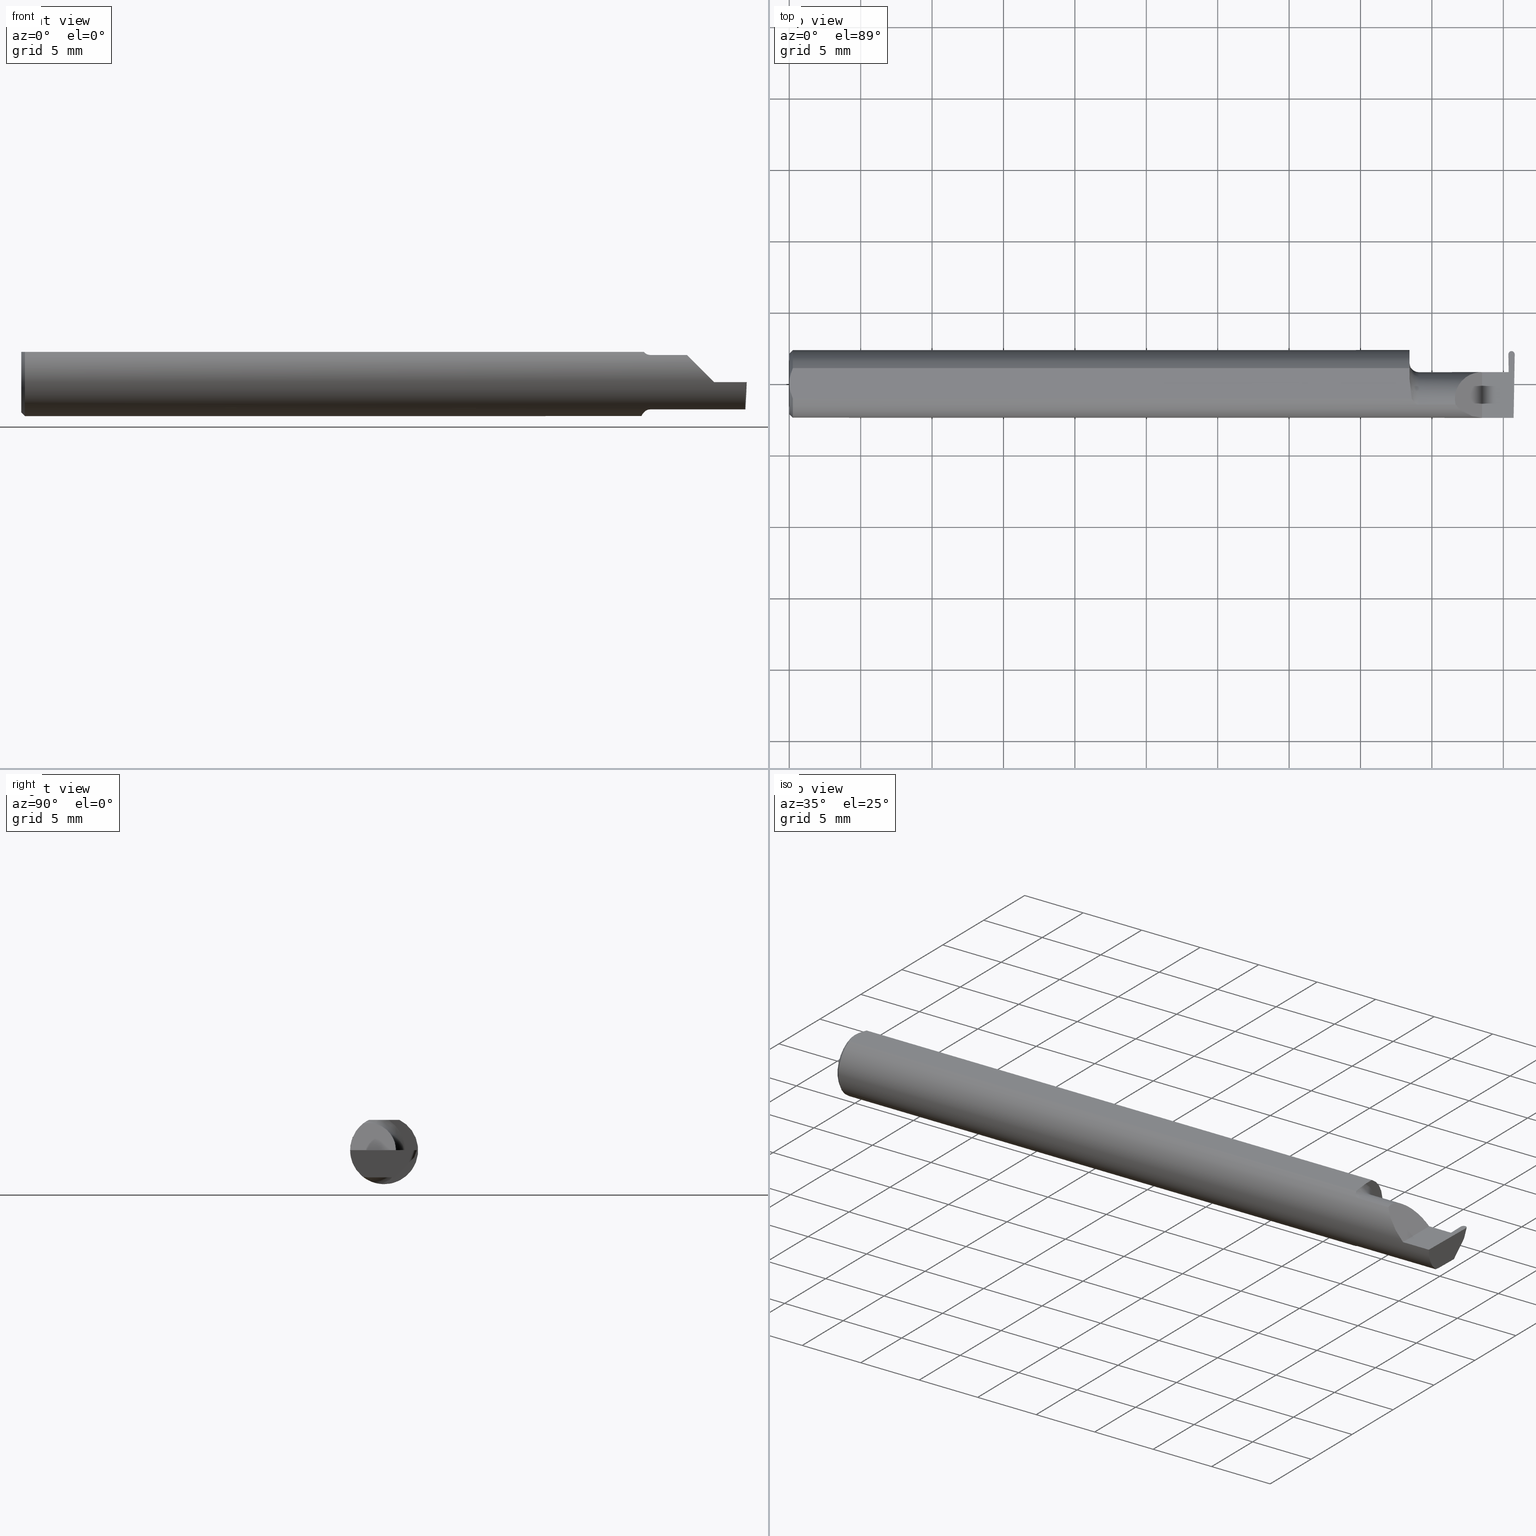
[diagram: canonical four-view strip — front | top / right | iso, engineering-drawing reading convention]
A machine part, canonical four-view strip (front | top / right | iso — engineering-drawing reading convention). The complete STEP part file that produces these views, byte-faithful:
ISO-10303-21;
HEADER;
FILE_DESCRIPTION (( 'STEP AP203' ),
    '1' );
FILE_NAME ('221804-GFR017K-4.STEP',
    '2024-06-17T17:57:32',
    ( '' ),
    ( '' ),
    'SwSTEP 2.0',
    'SolidWorks 2022',
    '' );
FILE_SCHEMA (( 'CONFIG_CONTROL_DESIGN' ));
ENDSEC;

DATA;
#1 = DIRECTION ( 'NONE',  ( 1.000000000000000000, 1.566532321245610297E-16, 0.000000000000000000 ) ) ;
#2 = FACE_OUTER_BOUND ( 'NONE', #124, .T. ) ;
#3 = ORIENTED_EDGE ( 'NONE', *, *, #362, .F. ) ;
#4 = VECTOR ( 'NONE', #662, 39.37007874015748854 ) ;
#5 = CARTESIAN_POINT ( 'NONE',  ( 1.995050583981878400, -0.05300374992736034407, -0.07445783144524582842 ) ) ;
#6 = CARTESIAN_POINT ( 'NONE',  ( 1.709999999999999964, 0.01227294415283377085, 0.08359999999999991049 ) ) ;
#7 = ADVANCED_FACE ( 'NONE', ( #649 ), #435, .F. ) ;
#8 = APPLICATION_CONTEXT ( 'configuration controlled 3d designs of mechanical parts and assemblies' ) ;
#9 = PRODUCT_DEFINITION ( 'UNKNOWN', '', #181, #637 ) ;
#10 = CARTESIAN_POINT ( 'NONE',  ( 1.994999172194938941, -0.05810704225352099350, -0.07337936794867837287 ) ) ;
#11 = ORIENTED_EDGE ( 'NONE', *, *, #430, .T. ) ;
#12 = CARTESIAN_POINT ( 'NONE',  ( 1.977327383411515482, 0.03239999999999999825, 0.000000000000000000 ) ) ;
#13 = CARTESIAN_POINT ( 'NONE',  ( 0.000000000000000000, -0.04209513035969864037, 0.08359999999999988274 ) ) ;
#14 = ORIENTED_EDGE ( 'NONE', *, *, #594, .T. ) ;
#15 = CARTESIAN_POINT ( 'NONE',  ( 1.716129652885479473, -0.04209513035970120776, 0.08359999999999991049 ) ) ;
#16 = AXIS2_PLACEMENT_3D ( 'NONE', #226, #667, #284 ) ;
#17 = CARTESIAN_POINT ( 'NONE',  ( 1.991240804999999670, 0.08344181815339780928, -0.01904274739554432869 ) ) ;
#18 = ORIENTED_EDGE ( 'NONE', *, *, #489, .T. ) ;
#19 = CARTESIAN_POINT ( 'NONE',  ( 0.000000000000000000, 0.04209513035969864037, 0.08359999999999988274 ) ) ;
#20 = LINE ( 'NONE', #13, #125 ) ;
#21 = DATE_TIME_ROLE ( 'classification_date' ) ;
#22 = ORIENTED_EDGE ( 'NONE', *, *, #59, .T. ) ;
#23 = CYLINDRICAL_SURFACE ( 'NONE', #516, 0.07500000000000006661 ) ;
#24 = FACE_OUTER_BOUND ( 'NONE', #25, .T. ) ;
#25 = EDGE_LOOP ( 'NONE', ( #573, #391, #22, #355, #408, #46 ) ) ;
#26 = ADVANCED_FACE ( 'NONE', ( #641 ), #105, .F. ) ;
#27 = CARTESIAN_POINT ( 'NONE',  ( 1.994999172194938941, -0.05810704225352099350, -0.07337936794867837287 ) ) ;
#28 = VECTOR ( 'NONE', #557, 39.37007874015748143 ) ;
#29 = AXIS2_PLACEMENT_3D ( 'NONE', #402, #308, #475 ) ;
#30 = VECTOR ( 'NONE', #188, 39.37007874015748143 ) ;
#31 = DIRECTION ( 'NONE',  ( 0.000000000000000000, 0.000000000000000000, -1.000000000000000000 ) ) ;
#32 = VERTEX_POINT ( 'NONE', #699 ) ;
#33 = CC_DESIGN_PERSON_AND_ORGANIZATION_ASSIGNMENT ( #574, #668, ( #9 ) ) ;
#34 = CARTESIAN_POINT ( 'NONE',  ( 0.004072204388638868758, -0.02891446873729324601, 0.08359999999999991049 ) ) ;
#35 = CARTESIAN_POINT ( 'NONE',  ( 1.982482944067824659, 0.08148793596879662371, 0.000000000000000000 ) ) ;
#36 = APPROVAL_ROLE ( '' ) ;
#37 = VERTEX_POINT ( 'NONE', #379 ) ;
#38 = DIRECTION ( 'NONE',  ( 1.000000000000000000, 1.566532321245610297E-16, 0.000000000000000000 ) ) ;
#39 = ADVANCED_FACE ( 'NONE', ( #2 ), #51, .F. ) ;
#40 = CARTESIAN_POINT ( 'NONE',  ( 1.999998665932175124, 0.08148793596879662371, 0.000000000000000000 ) ) ;
#41 = ORIENTED_EDGE ( 'NONE', *, *, #485, .F. ) ;
#42 = APPLICATION_PROTOCOL_DEFINITION ( 'international standard', 'config_control_design', 1994, #8 ) ;
#43 = FACE_OUTER_BOUND ( 'NONE', #470, .T. ) ;
#44 = VECTOR ( 'NONE', #63, 39.37007874015748143 ) ;
#45 = CC_DESIGN_PERSON_AND_ORGANIZATION_ASSIGNMENT ( #142, #465, ( #181 ) ) ;
#46 = ORIENTED_EDGE ( 'NONE', *, *, #552, .F. ) ;
#47 =( BOUNDED_CURVE ( )  B_SPLINE_CURVE ( 3, ( #331, #663, #113, #172 ),
 .UNSPECIFIED., .F., .T. ) 
 B_SPLINE_CURVE_WITH_KNOTS ( ( 4, 4 ),
 ( 1.672436806532646703, 3.247686724355353771 ),
 .UNSPECIFIED. ) 
 CURVE ( )  GEOMETRIC_REPRESENTATION_ITEM ( )  RATIONAL_B_SPLINE_CURVE ( ( 1.000000000000000000, 0.8036869647627110647, 0.8036869647627110647, 1.000000000000000000 ) ) 
 REPRESENTATION_ITEM ( '' )  );
#48 = CARTESIAN_POINT ( 'NONE',  ( 0.000000000000000000, 0.000000000000000000, 0.000000000000000000 ) ) ;
#49 = ORIENTED_EDGE ( 'NONE', *, *, #583, .F. ) ;
#50 = CARTESIAN_POINT ( 'NONE',  ( 1.732603832840146074, -0.05810704225352093799, 0.07337936794867844226 ) ) ;
#51 = PLANE ( 'NONE',  #351 ) ;
#52 = DIRECTION ( 'NONE',  ( -0.03549161113179510885, 0.03487750912278164694, 0.9987611851171729338 ) ) ;
#53 = EDGE_CURVE ( 'NONE', #672, #347, #538, .T. ) ;
#54 = CARTESIAN_POINT ( 'NONE',  ( 1.709999999999999964, 0.09359999999999997489, 0.000000000000000000 ) ) ;
#55 = EDGE_LOOP ( 'NONE', ( #479, #515, #688 ) ) ;
#56 = EDGE_CURVE ( 'NONE', #547, #32, #437, .T. ) ;
#57 = CARTESIAN_POINT ( 'NONE',  ( 1.986630673423979587, -1.954482585631507119, -0.02333781029786680811 ) ) ;
#58 = CARTESIAN_POINT ( 'NONE',  ( 1.734999999999999876, -0.05810704225352093799, 0.07337936794867844226 ) ) ;
#59 = EDGE_CURVE ( 'NONE', #89, #394, #493, .T. ) ;
#60 = ORIENTED_EDGE ( 'NONE', *, *, #128, .F. ) ;
#61 = VECTOR ( 'NONE', #576, 39.37007874015748143 ) ;
#62 = CC_DESIGN_APPROVAL ( #598, ( #181 ) ) ;
#63 = DIRECTION ( 'NONE',  ( 0.7071067811865493491, 0.000000000000000000, -0.7071067811865457964 ) ) ;
#64 =( BOUNDED_CURVE ( )  B_SPLINE_CURVE ( 3, ( #659, #169, #78, #390 ),
 .UNSPECIFIED., .F., .T. ) 
 B_SPLINE_CURVE_WITH_KNOTS ( ( 4, 4 ),
 ( 6.074922494366329140, 7.853981633974482790 ),
 .UNSPECIFIED. ) 
 CURVE ( )  GEOMETRIC_REPRESENTATION_ITEM ( )  RATIONAL_B_SPLINE_CURVE ( ( 1.000000000000000000, 0.7531850099525143616, 0.7531850099525143616, 1.000000000000000000 ) ) 
 REPRESENTATION_ITEM ( '' )  );
#65 = CARTESIAN_POINT ( 'NONE',  ( -3.937007874019685528E-05, 0.09039999999999999425, 0.000000000000000000 ) ) ;
#66 = DIRECTION ( 'NONE',  ( 0.000000000000000000, -0.9396926207859084279, 0.3420201433256688794 ) ) ;
#67 = ORIENTED_EDGE ( 'NONE', *, *, #100, .F. ) ;
#68 = ADVANCED_FACE ( 'NONE', ( #154 ), #159, .T. ) ;
#69 = CARTESIAN_POINT ( 'NONE',  ( 1.716129652885479473, -0.04209513035970120776, 0.08359999999999991049 ) ) ;
#70 = CARTESIAN_POINT ( 'NONE',  ( 1.986094859449813121, -0.04276086386476028040, -0.07500000000000002498 ) ) ;
#71 = ORIENTED_EDGE ( 'NONE', *, *, #174, .F. ) ;
#72 = AXIS2_PLACEMENT_3D ( 'NONE', #176, #459, #671 ) ;
#73 = CARTESIAN_POINT ( 'NONE',  ( 1.999996821881227627, 0.08109858189432714304, 0.0001417894146689500229 ) ) ;
#74 = APPROVAL_PERSON_ORGANIZATION ( #253, #336, #257 ) ;
#75 = PLANE ( 'NONE',  #72 ) ;
#76 = ORIENTED_EDGE ( 'NONE', *, *, #496, .T. ) ;
#77 = LINE ( 'NONE', #19, #30 ) ;
#78 = CARTESIAN_POINT ( 'NONE',  ( 1.858433946715231766, 0.03240000000000000518, 0.05156605328476855654 ) ) ;
#79 = SECURITY_CLASSIFICATION_LEVEL ( 'unclassified' ) ;
#80 = VERTEX_POINT ( 'NONE', #585 ) ;
#81 = DIRECTION ( 'NONE',  ( -0.03876062227022340073, -0.3417631236437465025, -0.9389864650134709390 ) ) ;
#82 = FACE_OUTER_BOUND ( 'NONE', #607, .T. ) ;
#83 = EDGE_LOOP ( 'NONE', ( #563, #247, #221, #680, #192 ) ) ;
#84 = APPROVAL ( #191, 'UNSPECIFIED' ) ;
#85 = CARTESIAN_POINT ( 'NONE',  ( 1.999998665932175124, 0.08148793596879662371, 0.000000000000000000 ) ) ;
#86 = AXIS2_PLACEMENT_3D ( 'NONE', #345, #562, #410 ) ;
#87 = DIRECTION ( 'NONE',  ( -0.7071067811865442421, 0.000000000000000000, -0.7071067811865509034 ) ) ;
#88 = CALENDAR_DATE ( 2024, 17, 6 ) ;
#89 = VERTEX_POINT ( 'NONE', #6 ) ;
#90 = CARTESIAN_POINT ( 'NONE',  ( 1.996436576927335116, 0.02748456554894272708, -0.07500000000000002498 ) ) ;
#91 = CARTESIAN_POINT ( 'NONE',  ( 1.982613296257933255, 0.1198977383242114114, 0.01741317277526965857 ) ) ;
#92 = EDGE_LOOP ( 'NONE', ( #60, #215, #555 ) ) ;
#93 = CARTESIAN_POINT ( 'NONE',  ( 1.983339777177351770, 0.03239999999999999825, 0.000000000000000000 ) ) ;
#94 = ORIENTED_EDGE ( 'NONE', *, *, #293, .T. ) ;
#95 =( NAMED_UNIT ( * ) PLANE_ANGLE_UNIT ( ) SI_UNIT ( $, .RADIAN. ) );
#96 = DIRECTION ( 'NONE',  ( -0.7071067811865507924, 0.000000000000000000, 0.7071067811865441310 ) ) ;
#97 = AXIS2_PLACEMENT_3D ( 'NONE', #376, #488, #592 ) ;
#98 = VERTEX_POINT ( 'NONE', #158 ) ;
#99 = CARTESIAN_POINT ( 'NONE',  ( 1.724565501274438972, -0.05415466354550829697, 0.07636456853488583774 ) ) ;
#100 = EDGE_CURVE ( 'NONE', #486, #236, #427, .T. ) ;
#101 = ORIENTED_EDGE ( 'NONE', *, *, #174, .T. ) ;
#102 = CARTESIAN_POINT ( 'NONE',  ( 1.734999999999999876, -0.04260000000000008225, 0.000000000000000000 ) ) ;
#103 = CARTESIAN_POINT ( 'NONE',  ( 1.718379054196076394, -0.04728090127810210402, -0.08090622725813383098 ) ) ;
#104 = CARTESIAN_POINT ( 'NONE',  ( 1.858740805000000051, -0.05810704225352100738, -0.07337936794867837287 ) ) ;
#105 = PLANE ( 'NONE',  #566 ) ;
#106 = VECTOR ( 'NONE', #197, 39.37007874015748143 ) ;
#107 = ORIENTED_EDGE ( 'NONE', *, *, #438, .T. ) ;
#108 = EDGE_CURVE ( 'NONE', #298, #394, #179, .T. ) ;
#109 = ORIENTED_EDGE ( 'NONE', *, *, #232, .F. ) ;
#110 = EDGE_CURVE ( 'NONE', #399, #486, #656, .T. ) ;
#111 = CARTESIAN_POINT ( 'NONE',  ( 1.982484788118772157, 0.08109858189432718467, 0.0001417894146689392351 ) ) ;
#112 = DIRECTION ( 'NONE',  ( 0.000000000000000000, -0.7071067811865436870, -0.7071067811865513475 ) ) ;
#113 = CARTESIAN_POINT ( 'NONE',  ( 1.996506178668245202, 0.09039999999999986935, -6.455300748705125713E-19 ) ) ;
#114 = CC_DESIGN_APPROVAL ( #336, ( #9 ) ) ;
#115 = CARTESIAN_POINT ( 'NONE',  ( 1.983525690212190273, 0.03221730376948681029, -0.005231735530809572890 ) ) ;
#116 = CARTESIAN_POINT ( 'NONE',  ( 1.991240804999999670, 0.08344181815339780928, -0.01904274739554432869 ) ) ;
#117 = ADVANCED_FACE ( 'NONE', ( #696 ), #433, .T. ) ;
#118 = ORIENTED_EDGE ( 'NONE', *, *, #684, .F. ) ;
#119 = CARTESIAN_POINT ( 'NONE',  ( 0.000000000000000000, 0.000000000000000000, -0.08359999999999989662 ) ) ;
#120 = LINE ( 'NONE', #653, #28 ) ;
#121 = EDGE_LOOP ( 'NONE', ( #568, #286, #647, #528, #18 ) ) ;
#122 = CARTESIAN_POINT ( 'NONE',  ( 1.985975431331754804, 0.09040000000000000813, -7.891494905330330497E-18 ) ) ;
#123 = CARTESIAN_POINT ( 'NONE',  ( 1.991123049092493602, 0.09039999999999999425, 0.000000000000000000 ) ) ;
#124 = EDGE_LOOP ( 'NONE', ( #41, #101, #350, #502 ) ) ;
#125 = VECTOR ( 'NONE', #235, 39.37007874015748143 ) ;
#126 = CARTESIAN_POINT ( 'NONE',  ( 2.476070721796526867E-17, 0.007317304829308955878, 0.08359999999999991049 ) ) ;
#127 = PRODUCT_DEFINITION_SHAPE ( 'NONE', 'NONE',  #9 ) ;
#128 = EDGE_CURVE ( 'NONE', #368, #37, #64, .T. ) ;
#129 = CARTESIAN_POINT ( 'NONE',  ( 1.986444300365750371, 0.08282371805517305119, -0.01966084749376911453 ) ) ;
#130 = SHAPE_DEFINITION_REPRESENTATION ( #127, #545 ) ;
#131 = ORIENTED_EDGE ( 'NONE', *, *, #462, .T. ) ;
#132 = CARTESIAN_POINT ( 'NONE',  ( 1.982490641074217796, 0.08104697476785366339, 0.000000000000000000 ) ) ;
#133 = LINE ( 'NONE', #687, #428 ) ;
#134 = ORIENTED_EDGE ( 'NONE', *, *, #684, .T. ) ;
#135 = CARTESIAN_POINT ( 'NONE',  ( 0.000000000000000000, 0.000000000000000000, 0.08359999999999991049 ) ) ;
#136 = DIRECTION ( 'NONE',  ( -0.01745240643727688848, 0.9998476951563912696, -0.000000000000000000 ) ) ;
#137 = ORIENTED_EDGE ( 'NONE', *, *, #430, .F. ) ;
#138 = CARTESIAN_POINT ( 'NONE',  ( 1.985920393706870346, 0.02986403519929134442, -0.07262053034965137988 ) ) ;
#139 = VECTOR ( 'NONE', #214, 39.37007874015748854 ) ;
#140 = VECTOR ( 'NONE', #352, 39.37007874015748143 ) ;
#141 = DIRECTION ( 'NONE',  ( -0.000000000000000000, 1.000000000000000000, -0.000000000000000000 ) ) ;
#142 = PERSON_AND_ORGANIZATION ( #202, #447 ) ;
#143 = VERTEX_POINT ( 'NONE', #285 ) ;
#144 = LINE ( 'NONE', #275, #682 ) ;
#145 = VERTEX_POINT ( 'NONE', #443 ) ;
#146 = MECHANICAL_CONTEXT ( 'NONE', #8, 'mechanical' ) ;
#147 = CARTESIAN_POINT ( 'NONE',  ( 1.836620632051321200, -0.05810704225352120167, 0.07337936794867828960 ) ) ;
#148 = ORIENTED_EDGE ( 'NONE', *, *, #462, .F. ) ;
#149 = FACE_OUTER_BOUND ( 'NONE', #178, .T. ) ;
#150 = PLANE ( 'NONE',  #157 ) ;
#151 = EDGE_LOOP ( 'NONE', ( #434, #570, #602, #233 ) ) ;
#152 = CARTESIAN_POINT ( 'NONE',  ( 1.983339777177351770, 0.03239999999999999825, 0.000000000000000000 ) ) ;
#153 = CARTESIAN_POINT ( 'NONE',  ( 1.977327383411515482, 0.03239999999999999825, 0.000000000000000000 ) ) ;
#154 = FACE_OUTER_BOUND ( 'NONE', #55, .T. ) ;
#155 =( BOUNDED_CURVE ( )  B_SPLINE_CURVE ( 3, ( #17, #396, #611, #508 ),
 .UNSPECIFIED., .F., .T. ) 
 B_SPLINE_CURVE_WITH_KNOTS ( ( 4, 4 ),
 ( 3.199957163127305382, 4.698770164224575829 ),
 .UNSPECIFIED. ) 
 CURVE ( )  GEOMETRIC_REPRESENTATION_ITEM ( )  RATIONAL_B_SPLINE_CURVE ( ( 1.000000000000000000, 0.8213955281430325162, 0.8213955281430325162, 1.000000000000000000 ) ) 
 REPRESENTATION_ITEM ( '' )  );
#156 = EDGE_LOOP ( 'NONE', ( #131, #457, #137, #600 ) ) ;
#157 = AXIS2_PLACEMENT_3D ( 'NONE', #548, #541, #112 ) ;
#158 = CARTESIAN_POINT ( 'NONE',  ( 1.734999999999999876, -0.05810704225352093799, 0.07337936794867844226 ) ) ;
#159 = PLANE ( 'NONE',  #262 ) ;
#160 = DIRECTION ( 'NONE',  ( -1.000000000000000000, -0.000000000000000000, -0.000000000000000000 ) ) ;
#161 = CARTESIAN_POINT ( 'NONE',  ( 1.709999999999999964, 0.09359999999999998876, 0.08359999999999991049 ) ) ;
#162 = FACE_OUTER_BOUND ( 'NONE', #199, .T. ) ;
#163 = EDGE_CURVE ( 'NONE', #547, #506, #454, .T. ) ;
#164 = FACE_OUTER_BOUND ( 'NONE', #252, .T. ) ;
#165 = VECTOR ( 'NONE', #532, 39.37007874015748143 ) ;
#166 = ORIENTED_EDGE ( 'NONE', *, *, #190, .F. ) ;
#167 = LOCAL_TIME ( 10, 57, 32.00000000000000000, #297 ) ;
#168 = CARTESIAN_POINT ( 'NONE',  ( 1.991240804999999670, 0.08344181815339780928, -0.01904274739554432869 ) ) ;
#169 = CARTESIAN_POINT ( 'NONE',  ( 1.825958805822864628, -0.007655250284932180876, 0.08404119417713470930 ) ) ;
#170 = EDGE_LOOP ( 'NONE', ( #212, #461, #292, #187, #118, #631, #109, #628, #373, #49, #661, #289 ) ) ;
#171 = CARTESIAN_POINT ( 'NONE',  ( 1.709999999999999964, -0.04260000000000008225, 0.000000000000000000 ) ) ;
#172 = CARTESIAN_POINT ( 'NONE',  ( 1.991358560907505959, 0.09039999999999999425, 0.000000000000000000 ) ) ;
#173 = ORIENTED_EDGE ( 'NONE', *, *, #665, .F. ) ;
#174 = EDGE_CURVE ( 'NONE', #444, #550, #120, .T. ) ;
#175 = CARTESIAN_POINT ( 'NONE',  ( 1.986094660071884288, -0.04260000000000003367, -0.07500000000000003886 ) ) ;
#176 = CARTESIAN_POINT ( 'NONE',  ( 2.191425808082400728, 0.09360000000000005815, 0.08359999999999991049 ) ) ;
#177 = COORDINATED_UNIVERSAL_TIME_OFFSET ( 8, 0, .BEHIND. ) ;
#178 = EDGE_LOOP ( 'NONE', ( #76, #654, #166, #313, #107 ) ) ;
#179 = CIRCLE ( 'NONE', #533, 0.09360000000000001652 ) ;
#180 = DIRECTION ( 'NONE',  ( 0.000000000000000000, 0.000000000000000000, -1.000000000000000000 ) ) ;
#181 = PRODUCT_DEFINITION_FORMATION_WITH_SPECIFIED_SOURCE ( 'ANY', '', #603, .NOT_KNOWN. ) ;
#182 = COORDINATED_UNIVERSAL_TIME_OFFSET ( 8, 0, .BEHIND. ) ;
#183 = ORIENTED_EDGE ( 'NONE', *, *, #531, .T. ) ;
#184 = DIRECTION ( 'NONE',  ( 0.03876062227022340767, 0.3417631236437464470, 0.9389864650134710500 ) ) ;
#185 = FACE_OUTER_BOUND ( 'NONE', #613, .T. ) ;
#186 = APPROVAL_STATUS ( 'not_yet_approved' ) ;
#187 = ORIENTED_EDGE ( 'NONE', *, *, #604, .T. ) ;
#188 = DIRECTION ( 'NONE',  ( -1.000000000000000000, -0.000000000000000000, -0.000000000000000000 ) ) ;
#189 = FACE_OUTER_BOUND ( 'NONE', #591, .T. ) ;
#190 = EDGE_CURVE ( 'NONE', #519, #89, #406, .T. ) ;
#191 = APPROVAL_STATUS ( 'not_yet_approved' ) ;
#192 = ORIENTED_EDGE ( 'NONE', *, *, #293, .F. ) ;
#193 = VECTOR ( 'NONE', #300, 39.37007874015748143 ) ;
#194 = APPROVAL_PERSON_ORGANIZATION ( #509, #598, #36 ) ;
#195 = FACE_OUTER_BOUND ( 'NONE', #151, .T. ) ;
#196 = EDGE_LOOP ( 'NONE', ( #335, #359, #388, #403, #173, #3, #421, #425, #94 ) ) ;
#197 = DIRECTION ( 'NONE',  ( 1.000000000000000000, 1.566532321245610297E-16, 0.000000000000000000 ) ) ;
#198 = DIRECTION ( 'NONE',  ( 0.9992386149554827179, 0.01744177490282354179, 0.03489949670250104552 ) ) ;
#199 = EDGE_LOOP ( 'NONE', ( #577, #417, #277, #267, #498, #11 ) ) ;
#200 = DIRECTION ( 'NONE',  ( 1.000000000000000000, 0.000000000000000000, -0.000000000000000000 ) ) ;
#201 = MANIFOLD_SOLID_BREP ( 'Radii', #542 ) ;
#202 = PERSON ( 'UNSPECIFIED', 'UNSPECIFIED', 'UNSPECIFIED', ('UNSPECIFIED'), ('UNSPECIFIED'), ('UNSPECIFIED') ) ;
#203 = EDGE_LOOP ( 'NONE', ( #268, #691, #340, #377 ) ) ;
#204 = CARTESIAN_POINT ( 'NONE',  ( 1.709999999999999964, 0.03239999999999998437, 3.551475717527338624E-17 ) ) ;
#205 =( BOUNDED_CURVE ( )  B_SPLINE_CURVE ( 3, ( #392, #122, #337, #132 ),
 .UNSPECIFIED., .F., .T. ) 
 B_SPLINE_CURVE_WITH_KNOTS ( ( 4, 4 ),
 ( 6.177091236413993158, 7.752341154236727760 ),
 .UNSPECIFIED. ) 
 CURVE ( )  GEOMETRIC_REPRESENTATION_ITEM ( )  RATIONAL_B_SPLINE_CURVE ( ( 1.000000000000000000, 0.8036869647627045143, 0.8036869647627045143, 1.000000000000000000 ) ) 
 REPRESENTATION_ITEM ( '' )  );
#206 = EDGE_CURVE ( 'NONE', #80, #616, #334, .T. ) ;
#207 = AXIS2_PLACEMENT_3D ( 'NONE', #478, #690, #200 ) ;
#208 = CC_DESIGN_PERSON_AND_ORGANIZATION_ASSIGNMENT ( #679, #407, ( #646 ) ) ;
#209 = CARTESIAN_POINT ( 'NONE',  ( 1.994999172194938941, -0.05810704225352099350, -0.07337936794867837287 ) ) ;
#210 = ORIENTED_EDGE ( 'NONE', *, *, #163, .F. ) ;
#211 = DIRECTION ( 'NONE',  ( 1.000000000000000000, 1.566532321245610297E-16, 0.000000000000000000 ) ) ;
#212 = ORIENTED_EDGE ( 'NONE', *, *, #56, .F. ) ;
#213 = AXIS2_PLACEMENT_3D ( 'NONE', #504, #599, #223 ) ;
#214 = DIRECTION ( 'NONE',  ( 0.03876062227022355339, -0.3417631236437464470, -0.9389864650134710500 ) ) ;
#215 = ORIENTED_EDGE ( 'NONE', *, *, #604, .F. ) ;
#216 = CARTESIAN_POINT ( 'NONE',  ( 1.986094660071884288, -0.04260000000000003367, -0.07500000000000003886 ) ) ;
#217 = CARTESIAN_POINT ( 'NONE',  ( 1.709999999999999964, 0.000000000000000000, 0.000000000000000000 ) ) ;
#218 = ADVANCED_FACE ( 'NONE', ( #164 ), #546, .F. ) ;
#219 = CARTESIAN_POINT ( 'NONE',  ( 1.710000000000000631, -0.01220003991882276199, -0.09296180880970883464 ) ) ;
#220 = CARTESIAN_POINT ( 'NONE',  ( 1.711463898467977307, -0.005727447913487254683, 0.08359999999999991049 ) ) ;
#221 = ORIENTED_EDGE ( 'NONE', *, *, #489, .F. ) ;
#222 = CARTESIAN_POINT ( 'NONE',  ( 1.734999999999999876, -0.05810704225352095881, -0.07337936794867842838 ) ) ;
#223 = DIRECTION ( 'NONE',  ( 0.000000000000000000, 0.000000000000000000, -1.000000000000000000 ) ) ;
#224 = AXIS2_PLACEMENT_3D ( 'NONE', #372, #316, #66 ) ;
#225 = VERTEX_POINT ( 'NONE', #123 ) ;
#226 = CARTESIAN_POINT ( 'NONE',  ( 1.988366712856626473, 0.05579773807489041976, -0.06948564479986588105 ) ) ;
#227 = CARTESIAN_POINT ( 'NONE',  ( 1.991240804999999670, 0.08344181815339780928, -0.01904274739554432869 ) ) ;
#228 = EDGE_CURVE ( 'NONE', #245, #590, #155, .T. ) ;
#229 = ORIENTED_EDGE ( 'NONE', *, *, #642, .F. ) ;
#230 = CARTESIAN_POINT ( 'NONE',  ( 1.995250001108639148, -0.04049431757617857897, -0.07500000000000002498 ) ) ;
#231 = LINE ( 'NONE', #70, #492 ) ;
#232 = EDGE_CURVE ( 'NONE', #399, #519, #20, .T. ) ;
#233 = ORIENTED_EDGE ( 'NONE', *, *, #558, .T. ) ;
#234 = CARTESIAN_POINT ( 'NONE',  ( 0.000000000000000000, 0.000000000000000000, 0.08359999999999991049 ) ) ;
#235 = DIRECTION ( 'NONE',  ( 1.000000000000000000, 0.000000000000000000, 0.000000000000000000 ) ) ;
#236 = VERTEX_POINT ( 'NONE', #501 ) ;
#237 = CARTESIAN_POINT ( 'NONE',  ( 0.004492168231814808177, 0.02859366993844194779, 0.08359999999999991049 ) ) ;
#238 = CARTESIAN_POINT ( 'NONE',  ( 0.000000000000000000, 0.000000000000000000, -0.08359999999999989662 ) ) ;
#239 = DATE_AND_TIME ( #624, #263 ) ;
#240 = ORIENTED_EDGE ( 'NONE', *, *, #446, .F. ) ;
#241 = DIRECTION ( 'NONE',  ( -0.01745240643727645827, -0.9998476951563912696, 0.000000000000000000 ) ) ;
#242 = EDGE_CURVE ( 'NONE', #309, #643, #326, .T. ) ;
#243 = DIRECTION ( 'NONE',  ( 0.000000000000000000, 0.000000000000000000, 1.000000000000000000 ) ) ;
#244 = DATE_AND_TIME ( #88, #307 ) ;
#245 = VERTEX_POINT ( 'NONE', #116 ) ;
#246 = LINE ( 'NONE', #363, #61 ) ;
#247 = ORIENTED_EDGE ( 'NONE', *, *, #228, .F. ) ;
#248 = DATE_AND_TIME ( #356, #386 ) ;
#249 = VECTOR ( 'NONE', #241, 39.37007874015748143 ) ;
#250 = LINE ( 'NONE', #349, #318 ) ;
#251 = EDGE_CURVE ( 'NONE', #560, #80, #231, .T. ) ;
#252 = EDGE_LOOP ( 'NONE', ( #530, #666, #14 ) ) ;
#253 = PERSON_AND_ORGANIZATION ( #202, #447 ) ;
#254 =( BOUNDED_CURVE ( )  B_SPLINE_CURVE ( 3, ( #272, #657, #439, #168 ),
 .UNSPECIFIED., .F., .F. ) 
 B_SPLINE_CURVE_WITH_KNOTS ( ( 4, 4 ),
 ( 1.570796326794940967, 1.647233243520375812 ),
 .UNSPECIFIED. ) 
 CURVE ( )  GEOMETRIC_REPRESENTATION_ITEM ( )  RATIONAL_B_SPLINE_CURVE ( ( 1.000000000000000000, 0.9995131757411308548, 0.9995131757411308548, 1.000000000000000000 ) ) 
 REPRESENTATION_ITEM ( '' )  );
#255 = DIRECTION ( 'NONE',  ( -1.000000000000000000, -0.000000000000000000, -0.000000000000000000 ) ) ;
#256 = ORIENTED_EDGE ( 'NONE', *, *, #633, .F. ) ;
#257 = APPROVAL_ROLE ( '' ) ;
#258 = CC_DESIGN_PERSON_AND_ORGANIZATION_ASSIGNMENT ( #360, #423, ( #603 ) ) ;
#259 = LINE ( 'NONE', #424, #339 ) ;
#260 = DIRECTION ( 'NONE',  ( 1.000000000000000000, 0.000000000000000000, 0.000000000000000000 ) ) ;
#261 =( NAMED_UNIT ( * ) SI_UNIT ( $, .STERADIAN. ) SOLID_ANGLE_UNIT ( ) );
#262 = AXIS2_PLACEMENT_3D ( 'NONE', #54, #211, #265 ) ;
#263 = LOCAL_TIME ( 10, 57, 32.00000000000000000, #177 ) ;
#264 = CARTESIAN_POINT ( 'NONE',  ( 1.983339777177351770, 0.03239999999999999825, 0.000000000000000000 ) ) ;
#265 = DIRECTION ( 'NONE',  ( -1.566532321245610297E-16, 1.000000000000000000, 0.000000000000000000 ) ) ;
#266 = APPLICATION_CONTEXT ( 'configuration controlled 3d designs of mechanical parts and assemblies' ) ;
#267 = ORIENTED_EDGE ( 'NONE', *, *, #371, .T. ) ;
#268 = ORIENTED_EDGE ( 'NONE', *, *, #242, .F. ) ;
#269 = AXIS2_PLACEMENT_3D ( 'NONE', #595, #260, #483 ) ;
#270 = DIRECTION ( 'NONE',  ( -1.224646799147358877E-16, 0.000000000000000000, -1.000000000000000000 ) ) ;
#271 = EDGE_CURVE ( 'NONE', #347, #245, #692, .T. ) ;
#272 = CARTESIAN_POINT ( 'NONE',  ( 1.991240804999999670, 0.08936171360468941893, -0.002852668426042753638 ) ) ;
#273 = CARTESIAN_POINT ( 'NONE',  ( 1.709999999999999964, -0.006757276995305152960, -0.09335576686851605743 ) ) ;
#274 = B_SPLINE_CURVE_WITH_KNOTS ( 'NONE', 3,
 ( #222, #333, #539, #445, #389, #103, #324, #601, #640, #491, #219, #494 ),
 .UNSPECIFIED., .F., .F.,
 ( 4, 2, 2, 2, 2, 4 ),
 ( 1.968126669309073504E-07, 0.0002104342718631979539, 0.0004206717310594650376, 0.0008411466494519996388, 0.001261621567844533861, 0.001682096486237068516 ),
 .UNSPECIFIED. ) ;
#275 = CARTESIAN_POINT ( 'NONE',  ( 2.999519565323742037E-32, -0.09359999999999998876, 2.449293598294716768E-16 ) ) ;
#276 = CARTESIAN_POINT ( 'NONE',  ( 1.995925902212489556, -0.09360000000000001652, -0.02910696448121686056 ) ) ;
#277 = ORIENTED_EDGE ( 'NONE', *, *, #228, .T. ) ;
#278 = CARTESIAN_POINT ( 'NONE',  ( 1.977144687181002114, 0.03221730376948677560, -0.005231735530810520049 ) ) ;
#279 = ADVANCED_FACE ( 'NONE', ( #24 ), #75, .T. ) ;
#280 = CARTESIAN_POINT ( 'NONE',  ( 1.983457986492379144, 0.07687344668278631166, -0.02561111886615591304 ) ) ;
#281 = CIRCLE ( 'NONE', #306, 0.07500000000000010825 ) ;
#282 = ORIENTED_EDGE ( 'NONE', *, *, #438, .F. ) ;
#283 = LOCAL_TIME ( 10, 57, 32.00000000000000000, #182 ) ;
#284 = DIRECTION ( 'NONE',  ( 0.000000000000000000, 0.9396926207859084279, -0.3420201433256688794 ) ) ;
#285 = CARTESIAN_POINT ( 'NONE',  ( 1.991358560907505959, 0.09039999999999999425, 0.000000000000000000 ) ) ;
#286 = ORIENTED_EDGE ( 'NONE', *, *, #53, .F. ) ;
#287 = LINE ( 'NONE', #458, #534 ) ;
#288 = DIRECTION ( 'NONE',  ( 0.000000000000000000, -0.9396926207859083169, 0.3420201433256689905 ) ) ;
#289 = ORIENTED_EDGE ( 'NONE', *, *, #496, .F. ) ;
#290 = LINE ( 'NONE', #204, #610 ) ;
#291 = CARTESIAN_POINT ( 'NONE',  ( 0.000000000000000000, 0.000000000000000000, 0.000000000000000000 ) ) ;
#292 = ORIENTED_EDGE ( 'NONE', *, *, #440, .T. ) ;
#293 = EDGE_CURVE ( 'NONE', #582, #143, #47, .T. ) ;
#294 = CC_DESIGN_SECURITY_CLASSIFICATION ( #646, ( #181 ) ) ;
#295 = LINE ( 'NONE', #608, #140 ) ;
#296 = FACE_OUTER_BOUND ( 'NONE', #170, .T. ) ;
#297 = COORDINATED_UNIVERSAL_TIME_OFFSET ( 8, 0, .BEHIND. ) ;
#298 = VERTEX_POINT ( 'NONE', #273 ) ;
#299 = LINE ( 'NONE', #85, #249 ) ;
#300 = DIRECTION ( 'NONE',  ( -0.02596452850600440565, 0.7068683906002057871, 0.7068683906002134476 ) ) ;
#301 = ORIENTED_EDGE ( 'NONE', *, *, #505, .F. ) ;
#302 = EDGE_CURVE ( 'NONE', #89, #298, #525, .T. ) ;
#303 = CARTESIAN_POINT ( 'NONE',  ( 1.910000000000000142, -0.2500000000000000555, 1.102182119232621301E-17 ) ) ;
#304 = VERTEX_POINT ( 'NONE', #405 ) ;
#305 = DIRECTION ( 'NONE',  ( 1.000000000000000000, 0.000000000000000000, 0.000000000000000000 ) ) ;
#306 = AXIS2_PLACEMENT_3D ( 'NONE', #681, #416, #627 ) ;
#307 = LOCAL_TIME ( 10, 57, 32.00000000000000000, #567 ) ;
#308 = DIRECTION ( 'NONE',  ( -1.000000000000000000, -1.566532321245610297E-16, -0.000000000000000000 ) ) ;
#309 = VERTEX_POINT ( 'NONE', #238 ) ;
#310 = DIRECTION ( 'NONE',  ( 0.000000000000000000, 0.000000000000000000, 1.000000000000000000 ) ) ;
#311 = B_SPLINE_CURVE_WITH_KNOTS ( 'NONE', 3,
 ( #404, #34, #467, #451 ),
 .UNSPECIFIED., .F., .F.,
 ( 4, 4 ),
 ( 0.0006429768761302093617, 0.001744210492668864416 ),
 .UNSPECIFIED. ) ;
#312 = CARTESIAN_POINT ( 'NONE',  ( 1.726308147845286634, -0.05549979236676334110, 0.07538081185522389760 ) ) ;
#313 = ORIENTED_EDGE ( 'NONE', *, *, #527, .T. ) ;
#314 =( CONVERSION_BASED_UNIT ( 'INCH', #632 ) LENGTH_UNIT ( ) NAMED_UNIT ( #537 ) );
#315 = CARTESIAN_POINT ( 'NONE',  ( 1.996942494641693600, -0.09360000000000001652, 0.000000000000000000 ) ) ;
#316 = DIRECTION ( 'NONE',  ( -0.03876062227022355339, 0.3417631236437465025, 0.9389864650134710500 ) ) ;
#317 = EDGE_CURVE ( 'NONE', #522, #225, #133, .T. ) ;
#318 = VECTOR ( 'NONE', #136, 39.37007874015748143 ) ;
#319 = CC_DESIGN_APPROVAL ( #84, ( #646 ) ) ;
#320 = CARTESIAN_POINT ( 'NONE',  ( 2.000000000000000000, -0.2500000000000000555, 0.000000000000000000 ) ) ;
#321 = DIRECTION ( 'NONE',  ( 0.000000000000000000, -0.9993908270190957621, 0.03489949670250104552 ) ) ;
#322 =( BOUNDED_CURVE ( )  B_SPLINE_CURVE ( 3, ( #512, #520, #341, #564 ),
 .UNSPECIFIED., .F., .T. ) 
 B_SPLINE_CURVE_WITH_KNOTS ( ( 4, 4 ),
 ( 4.712388980384689674, 5.613420356061718408 ),
 .UNSPECIFIED. ) 
 CURVE ( )  GEOMETRIC_REPRESENTATION_ITEM ( )  RATIONAL_B_SPLINE_CURVE ( ( 1.000000000000000000, 0.9334817841311876530, 0.9334817841311876530, 1.000000000000000000 ) ) 
 REPRESENTATION_ITEM ( '' )  );
#323 = DIRECTION ( 'NONE',  ( -1.566532321245610297E-16, 1.000000000000000000, 0.000000000000000000 ) ) ;
#324 = CARTESIAN_POINT ( 'NONE',  ( 1.716206319820904325, -0.04283575577410217439, -0.08338874798717357817 ) ) ;
#325 = B_SPLINE_CURVE_WITH_KNOTS ( 'NONE', 3,
 ( #135, #126, #400, #237, #621, #561 ),
 .UNSPECIFIED., .F., .F.,
 ( 4, 2, 4 ),
 ( 0.001744210492668864416, 0.002295110172257193264, 0.002846009851845522111 ),
 .UNSPECIFIED. ) ;
#326 = CIRCLE ( 'NONE', #213, 0.08359999999999989662 ) ;
#327 = ADVANCED_FACE ( 'NONE', ( #185 ), #526, .F. ) ;
#328 = CARTESIAN_POINT ( 'NONE',  ( 1.995231968854677351, -0.08092595952420823802, -0.05530971394246252809 ) ) ;
#329 = CC_DESIGN_PERSON_AND_ORGANIZATION_ASSIGNMENT ( #469, #342, ( #181 ) ) ;
#330 = LINE ( 'NONE', #384, #374 ) ;
#331 = CARTESIAN_POINT ( 'NONE',  ( 1.999990968925781987, 0.08104697476785363564, 0.000000000000000000 ) ) ;
#332 = ORIENTED_EDGE ( 'NONE', *, *, #558, .F. ) ;
#333 = CARTESIAN_POINT ( 'NONE',  ( 1.732196475348975362, -0.05810704225352091717, -0.07337936794867841450 ) ) ;
#334 = LINE ( 'NONE', #543, #638 ) ;
#335 = ORIENTED_EDGE ( 'NONE', *, *, #594, .F. ) ;
#336 = APPROVAL ( #693, 'UNSPECIFIED' ) ;
#337 = CARTESIAN_POINT ( 'NONE',  ( 1.982395095373120641, 0.08652078431768195355, -7.453030208168987846E-18 ) ) ;
#338 = CARTESIAN_POINT ( 'NONE',  ( 1.709999999999999964, 0.01227294415283377085, 0.08359999999999991049 ) ) ;
#339 = VECTOR ( 'NONE', #544, 39.37007874015748143 ) ;
#340 = ORIENTED_EDGE ( 'NONE', *, *, #110, .F. ) ;
#341 = CARTESIAN_POINT ( 'NONE',  ( 1.854690286057537163, -0.08092595952420827965, 0.05530971394246238931 ) ) ;
#342 = PERSON_AND_ORGANIZATION_ROLE ( 'design_supplier' ) ;
#343 = ORIENTED_EDGE ( 'NONE', *, *, #629, .T. ) ;
#344 = CARTESIAN_POINT ( 'NONE',  ( 1.988366712856626695, 0.06402004850676712433, -0.07247832105396549707 ) ) ;
#345 = CARTESIAN_POINT ( 'NONE',  ( 0.000000000000000000, 0.000000000000000000, 0.000000000000000000 ) ) ;
#346 = EDGE_CURVE ( 'NONE', #441, #669, #464, .T. ) ;
#347 = VERTEX_POINT ( 'NONE', #674 ) ;
#348 = FACE_OUTER_BOUND ( 'NONE', #83, .T. ) ;
#349 = CARTESIAN_POINT ( 'NONE',  ( 1.982482944067824659, 0.08148793596879662371, 0.000000000000000000 ) ) ;
#350 = ORIENTED_EDGE ( 'NONE', *, *, #505, .T. ) ;
#351 = AXIS2_PLACEMENT_3D ( 'NONE', #264, #321, #644 ) ;
#352 = DIRECTION ( 'NONE',  ( 1.000000000000000000, -0.000000000000000000, -0.000000000000000000 ) ) ;
#353 = DIRECTION ( 'NONE',  ( -0.03876062227022355339, 0.3417631236437465025, 0.9389864650134709390 ) ) ;
#354 = APPROVAL_DATE_TIME ( #411, #84 ) ;
#355 = ORIENTED_EDGE ( 'NONE', *, *, #583, .T. ) ;
#356 = CALENDAR_DATE ( 2024, 17, 6 ) ;
#357 = ADVANCED_FACE ( 'NONE', ( #43 ), #618, .F. ) ;
#358 = DIRECTION ( 'NONE',  ( -0.9992386149554827179, 0.01744177490282310811, 0.03489949670250104552 ) ) ;
#359 = ORIENTED_EDGE ( 'NONE', *, *, #651, .T. ) ;
#360 = PERSON_AND_ORGANIZATION ( #202, #447 ) ;
#361 = EDGE_CURVE ( 'NONE', #669, #672, #250, .T. ) ;
#362 = EDGE_CURVE ( 'NONE', #145, #37, #420, .T. ) ;
#363 = CARTESIAN_POINT ( 'NONE',  ( 1.996630704565214964, 0.03119062438263837597, -0.07129394116630433098 ) ) ;
#364 = ORIENTED_EDGE ( 'NONE', *, *, #56, .T. ) ;
#365 = DIRECTION ( 'NONE',  ( -1.000000000000000000, -1.566532321245610297E-16, -0.000000000000000000 ) ) ;
#366 = VECTOR ( 'NONE', #141, 39.37007874015748143 ) ;
#367 = CARTESIAN_POINT ( 'NONE',  ( 1.717870098798738532, -0.04602557371825104909, 0.08162090280442949042 ) ) ;
#368 = VERTEX_POINT ( 'NONE', #147 ) ;
#369 = LINE ( 'NONE', #426, #106 ) ;
#370 = LINE ( 'NONE', #119, #44 ) ;
#371 = EDGE_CURVE ( 'NONE', #590, #616, #246, .T. ) ;
#372 = CARTESIAN_POINT ( 'NONE',  ( 1.988131554871229723, 0.1085545212478024601, 0.07546242569077336870 ) ) ;
#373 = ORIENTED_EDGE ( 'NONE', *, *, #100, .T. ) ;
#374 = VECTOR ( 'NONE', #442, 39.37007874015748143 ) ;
#375 = TOROIDAL_SURFACE ( 'NONE', #589, 0.1000000000000000472, 0.02499999999999993894 ) ;
#376 = CARTESIAN_POINT ( 'NONE',  ( 0.01000000000000016674, 0.000000000000000000, 0.000000000000000000 ) ) ;
#377 = ORIENTED_EDGE ( 'NONE', *, *, #552, .T. ) ;
#378 = ADVANCED_FACE ( 'NONE', ( #565 ), #518, .F. ) ;
#379 = CARTESIAN_POINT ( 'NONE',  ( 1.910000000000000142, 0.03240000000000001212, 3.551475717527338624E-17 ) ) ;
#380 = DIRECTION ( 'NONE',  ( 1.000000000000000000, 0.000000000000000000, 0.000000000000000000 ) ) ;
#381 = ADVANCED_FACE ( 'NONE', ( #296 ), #615, .T. ) ;
#382 = ADVANCED_FACE ( 'NONE', ( #195 ), #521, .F. ) ;
#383 = DIRECTION ( 'NONE',  ( 0.000000000000000000, 1.000000000000000000, 0.000000000000000000 ) ) ;
#384 = CARTESIAN_POINT ( 'NONE',  ( 2.115884466375952844, -0.04259999999999949938, -0.07500000000000002498 ) ) ;
#385 = VECTOR ( 'NONE', #523, 39.37007874015748143 ) ;
#386 = LOCAL_TIME ( 10, 57, 32.00000000000000000, #626 ) ;
#387 = CARTESIAN_POINT ( 'NONE',  ( 1.714570820222980574, -0.02392027542784322738, 0.08359999999999992437 ) ) ;
#388 = ORIENTED_EDGE ( 'NONE', *, *, #361, .F. ) ;
#389 = CARTESIAN_POINT ( 'NONE',  ( 1.723195691242755734, -0.05295078397730230285, -0.07721567059148477796 ) ) ;
#390 = CARTESIAN_POINT ( 'NONE',  ( 1.910000000000000142, 0.03240000000000001212, 3.551475717527338624E-17 ) ) ;
#391 = ORIENTED_EDGE ( 'NONE', *, *, #190, .T. ) ;
#392 = CARTESIAN_POINT ( 'NONE',  ( 1.991123049092493602, 0.09039999999999999425, 0.000000000000000000 ) ) ;
#393 = DIRECTION ( 'NONE',  ( 1.000000000000000000, -0.000000000000000000, -0.000000000000000000 ) ) ;
#394 = VERTEX_POINT ( 'NONE', #471 ) ;
#395 = DIRECTION ( 'NONE',  ( -0.03701368837992476124, 0.7066222423871552083, 0.7066222423871628688 ) ) ;
#396 = CARTESIAN_POINT ( 'NONE',  ( 1.996037309634248524, 0.08282371805517330099, -0.01966084749376884044 ) ) ;
#397 = VECTOR ( 'NONE', #323, 39.37007874015748143 ) ;
#398 = PERSON_AND_ORGANIZATION ( #202, #447 ) ;
#399 = VERTEX_POINT ( 'NONE', #678 ) ;
#400 = CARTESIAN_POINT ( 'NONE',  ( 0.0009807498324118613890, 0.01453516766257752398, 0.08359999999999992437 ) ) ;
#401 = ADVANCED_FACE ( 'NONE', ( #189 ), #569, .F. ) ;
#402 = CARTESIAN_POINT ( 'NONE',  ( 1.709999999999999964, -0.04260000000000008225, 0.000000000000000000 ) ) ;
#403 = ORIENTED_EDGE ( 'NONE', *, *, #346, .F. ) ;
#404 = CARTESIAN_POINT ( 'NONE',  ( 0.01000000000000016674, -0.04209513035969864037, 0.08359999999999988274 ) ) ;
#405 = CARTESIAN_POINT ( 'NONE',  ( 1.995213246285213016, -0.04259999999999949938, -0.07500000000000002498 ) ) ;
#406 = B_SPLINE_CURVE_WITH_KNOTS ( 'NONE', 3,
 ( #495, #452, #387, #220, #448, #338 ),
 .UNSPECIFIED., .F., .F.,
 ( 4, 2, 4 ),
 ( 0.009672910729349552816, 0.01035804079918432180, 0.01104317086901909252 ),
 .UNSPECIFIED. ) ;
#407 = PERSON_AND_ORGANIZATION_ROLE ( 'classification_officer' ) ;
#408 = ORIENTED_EDGE ( 'NONE', *, *, #575, .F. ) ;
#409 = DIRECTION ( 'NONE',  ( -1.000000000000000000, -0.000000000000000000, -0.000000000000000000 ) ) ;
#410 = DIRECTION ( 'NONE',  ( 0.000000000000000000, 0.000000000000000000, -1.000000000000000000 ) ) ;
#411 = DATE_AND_TIME ( #612, #167 ) ;
#412 = ORIENTED_EDGE ( 'NONE', *, *, #53, .T. ) ;
#413 = CONICAL_SURFACE ( 'NONE', #500, 0.08359999999999989662, 0.7853981633974458365 ) ;
#414 = CIRCLE ( 'NONE', #484, 0.08359999999999989662 ) ;
#415 = CARTESIAN_POINT ( 'NONE',  ( 0.000000000000000000, 0.000000000000000000, 0.000000000000000000 ) ) ;
#416 = DIRECTION ( 'NONE',  ( -1.000000000000000000, -1.566532321245610297E-16, -0.000000000000000000 ) ) ;
#417 = ORIENTED_EDGE ( 'NONE', *, *, #271, .T. ) ;
#418 = ADVANCED_FACE ( 'NONE', ( #82 ), #413, .T. ) ;
#419 =( LENGTH_UNIT ( ) NAMED_UNIT ( * ) SI_UNIT ( $, .METRE. ) );
#420 = LINE ( 'NONE', #630, #366 ) ;
#421 = ORIENTED_EDGE ( 'NONE', *, *, #440, .F. ) ;
#422 = UNCERTAINTY_MEASURE_WITH_UNIT (LENGTH_MEASURE( 1.000000000000000082E-05 ), #314, 'distance_accuracy_value', 'NONE');
#423 = PERSON_AND_ORGANIZATION_ROLE ( 'design_owner' ) ;
#424 = CARTESIAN_POINT ( 'NONE',  ( 1.983339777177351770, 0.03239999999999999825, 4.732000043842598316E-21 ) ) ;
#425 = ORIENTED_EDGE ( 'NONE', *, *, #629, .F. ) ;
#426 = CARTESIAN_POINT ( 'NONE',  ( 1.858740805000000051, -0.05810704225352100738, 0.07337936794867837287 ) ) ;
#427 = CIRCLE ( 'NONE', #97, 0.09360000000000001652 ) ;
#428 = VECTOR ( 'NONE', #353, 39.37007874015748854 ) ;
#429 =( GEOMETRIC_REPRESENTATION_CONTEXT ( 3 ) GLOBAL_UNCERTAINTY_ASSIGNED_CONTEXT ( ( #422 ) ) GLOBAL_UNIT_ASSIGNED_CONTEXT ( ( #314, #95, #261 ) ) REPRESENTATION_CONTEXT ( 'NONE', 'WORKASPACE' ) );
#430 = EDGE_CURVE ( 'NONE', #80, #540, #622, .T. ) ;
#431 =( BOUNDED_CURVE ( )  B_SPLINE_CURVE ( 3, ( #216, #593, #635, #115 ),
 .UNSPECIFIED., .F., .T. ) 
 B_SPLINE_CURVE_WITH_KNOTS ( ( 4, 4 ),
 ( 3.176499238629675315, 4.677482395344796373 ),
 .UNSPECIFIED. ) 
 CURVE ( )  GEOMETRIC_REPRESENTATION_ITEM ( )  RATIONAL_B_SPLINE_CURVE ( ( 1.000000000000000000, 0.8209024677461141950, 0.8209024677461141950, 1.000000000000000000 ) ) 
 REPRESENTATION_ITEM ( '' )  );
#432 = CARTESIAN_POINT ( 'NONE',  ( 1.983525690212190273, 0.03221730376948681029, -0.005231735530809572890 ) ) ;
#433 = CYLINDRICAL_SURFACE ( 'NONE', #224, 0.008750000000000000833 ) ;
#434 = ORIENTED_EDGE ( 'NONE', *, *, #446, .T. ) ;
#435 = PLANE ( 'NONE',  #588 ) ;
#436 = VECTOR ( 'NONE', #184, 39.37007874015748854 ) ;
#437 = LINE ( 'NONE', #104, #165 ) ;
#438 = EDGE_CURVE ( 'NONE', #98, #32, #281, .T. ) ;
#439 = CARTESIAN_POINT ( 'NONE',  ( 1.991240804999999225, 0.08541976413866105011, -0.01365817340858963697 ) ) ;
#440 = EDGE_CURVE ( 'NONE', #506, #145, #144, .T. ) ;
#441 = VERTEX_POINT ( 'NONE', #12 ) ;
#442 = DIRECTION ( 'NONE',  ( -1.000000000000000000, -0.000000000000000000, -0.000000000000000000 ) ) ;
#443 = CARTESIAN_POINT ( 'NONE',  ( 1.910000000000000142, -0.09360000000000005815, 1.102182119232621301E-17 ) ) ;
#444 = VERTEX_POINT ( 'NONE', #432 ) ;
#445 = CARTESIAN_POINT ( 'NONE',  ( 1.725047675231717426, -0.05464443219068142871, -0.07601042893068209183 ) ) ;
#446 = EDGE_CURVE ( 'NONE', #304, #560, #330, .T. ) ;
#447 = ORGANIZATION ( 'UNSPECIFIED', 'UNSPECIFIED', '' ) ;
#448 = CARTESIAN_POINT ( 'NONE',  ( 1.709999999999999964, 0.003280657920457338145, 0.08359999999999991049 ) ) ;
#449 = ORIENTED_EDGE ( 'NONE', *, *, #371, .F. ) ;
#450 =( BOUNDED_CURVE ( )  B_SPLINE_CURVE ( 3, ( #209, #5, #617, #503 ),
 .UNSPECIFIED., .F., .F. ) 
 B_SPLINE_CURVE_WITH_KNOTS ( ( 4, 4 ),
 ( 0.2552020043920849579, 0.4634648172053463799 ),
 .UNSPECIFIED. ) 
 CURVE ( )  GEOMETRIC_REPRESENTATION_ITEM ( )  RATIONAL_B_SPLINE_CURVE ( ( 1.000000000000000000, 0.9963888149483992596, 0.9963888149483992596, 1.000000000000000000 ) ) 
 REPRESENTATION_ITEM ( '' )  );
#451 = CARTESIAN_POINT ( 'NONE',  ( 0.000000000000000000, 0.000000000000000000, 0.08359999999999991049 ) ) ;
#452 = CARTESIAN_POINT ( 'NONE',  ( 1.716082007218903582, -0.03301619840524121219, 0.08359999999999991049 ) ) ;
#453 = ORIENTED_EDGE ( 'NONE', *, *, #128, .T. ) ;
#454 =( BOUNDED_CURVE ( )  B_SPLINE_CURVE ( 3, ( #10, #328, #276, #606 ),
 .UNSPECIFIED., .F., .T. ) 
 B_SPLINE_CURVE_WITH_KNOTS ( ( 4, 4 ),
 ( 0.2063001339125299927, 1.107331509589561058 ),
 .UNSPECIFIED. ) 
 CURVE ( )  GEOMETRIC_REPRESENTATION_ITEM ( )  RATIONAL_B_SPLINE_CURVE ( ( 1.000000000000000000, 0.9334817841311872089, 0.9334817841311872089, 1.000000000000000000 ) ) 
 REPRESENTATION_ITEM ( '' )  );
#455 = CARTESIAN_POINT ( 'NONE',  ( 1.998599639583657162, 0.06877923926384967024, -0.03370532628509262385 ) ) ;
#456 = CARTESIAN_POINT ( 'NONE',  ( 1.983881970416342400, 0.06877923926384973963, -0.03370532628509255446 ) ) ;
#457 = ORIENTED_EDGE ( 'NONE', *, *, #698, .F. ) ;
#458 = CARTESIAN_POINT ( 'NONE',  ( 1.980394745474062690, 0.1353532775798606813, 0.03286871203091912275 ) ) ;
#459 = DIRECTION ( 'NONE',  ( 0.000000000000000000, 0.000000000000000000, 1.000000000000000000 ) ) ;
#460 = DATE_TIME_ROLE ( 'creation_date' ) ;
#461 = ORIENTED_EDGE ( 'NONE', *, *, #163, .T. ) ;
#462 = EDGE_CURVE ( 'NONE', #560, #444, #431, .T. ) ;
#463 = CC_DESIGN_DATE_AND_TIME_ASSIGNMENT ( #239, #460, ( #9 ) ) ;
#464 = LINE ( 'NONE', #93, #385 ) ;
#465 = PERSON_AND_ORGANIZATION_ROLE ( 'creator' ) ;
#466 = ORIENTED_EDGE ( 'NONE', *, *, #242, .T. ) ;
#467 = CARTESIAN_POINT ( 'NONE',  ( 2.387527623501553705E-17, -0.01462709520273675068, 0.08359999999999991049 ) ) ;
#468 = DIRECTION ( 'NONE',  ( 0.03490480639812536257, 0.000000000000000000, 0.9993906415863165194 ) ) ;
#469 = PERSON_AND_ORGANIZATION ( #202, #447 ) ;
#470 = EDGE_LOOP ( 'NONE', ( #449, #587, #343, #210, #183, #332 ) ) ;
#471 = CARTESIAN_POINT ( 'NONE',  ( 1.709999999999999964, 0.04209513035969864037, 0.08359999999999988274 ) ) ;
#472 = ADVANCED_FACE ( 'NONE', ( #648 ), #553, .T. ) ;
#473 = ORIENTED_EDGE ( 'NONE', *, *, #642, .T. ) ;
#474 = APPROVAL_DATE_TIME ( #248, #336 ) ;
#475 = DIRECTION ( 'NONE',  ( 0.000000000000000000, -1.000000000000000000, 0.000000000000000000 ) ) ;
#476 = ORIENTED_EDGE ( 'NONE', *, *, #361, .T. ) ;
#477 = DIRECTION ( 'NONE',  ( 1.566532321245610297E-16, -1.000000000000000000, 0.000000000000000000 ) ) ;
#478 = CARTESIAN_POINT ( 'NONE',  ( 2.115884466375952844, -0.04259999999999949938, -0.07500000000000002498 ) ) ;
#479 = ORIENTED_EDGE ( 'NONE', *, *, #108, .T. ) ;
#480 = APPLICATION_PROTOCOL_DEFINITION ( 'international standard', 'config_control_design', 1994, #266 ) ;
#481 = ADVANCED_FACE ( 'NONE', ( #162 ), #150, .F. ) ;
#482 = LINE ( 'NONE', #73, #436 ) ;
#483 = DIRECTION ( 'NONE',  ( 0.000000000000000000, 0.000000000000000000, -1.000000000000000000 ) ) ;
#484 = AXIS2_PLACEMENT_3D ( 'NONE', #673, #409, #180 ) ;
#485 = EDGE_CURVE ( 'NONE', #444, #669, #259, .T. ) ;
#486 = VERTEX_POINT ( 'NONE', #497 ) ;
#487 = EDGE_CURVE ( 'NONE', #309, #486, #370, .T. ) ;
#488 = DIRECTION ( 'NONE',  ( 1.000000000000000000, 0.000000000000000000, 0.000000000000000000 ) ) ;
#489 = EDGE_CURVE ( 'NONE', #522, #245, #254, .T. ) ;
#490 = DIRECTION ( 'NONE',  ( 0.03547001781079536092, 0.000000000000000000, -0.9993707409347653003 ) ) ;
#491 = CARTESIAN_POINT ( 'NONE',  ( 1.710323329158491390, -0.01767221859896409702, -0.09207639555340685344 ) ) ;
#492 = VECTOR ( 'NONE', #554, 39.37007874015748854 ) ;
#493 = LINE ( 'NONE', #161, #397 ) ;
#494 = CARTESIAN_POINT ( 'NONE',  ( 1.709999999999999964, -0.006757276995305152960, -0.09335576686851605743 ) ) ;
#495 = CARTESIAN_POINT ( 'NONE',  ( 1.716129652885479473, -0.04209513035970120776, 0.08359999999999991049 ) ) ;
#496 = EDGE_CURVE ( 'NONE', #32, #298, #274, .T. ) ;
#497 = CARTESIAN_POINT ( 'NONE',  ( 0.01000000000000016674, 0.000000000000000000, -0.09360000000000001652 ) ) ;
#498 = ORIENTED_EDGE ( 'NONE', *, *, #206, .F. ) ;
#499 = CARTESIAN_POINT ( 'NONE',  ( 1.991240804999999670, 0.08936171360468941893, -0.002852668426042753638 ) ) ;
#500 = AXIS2_PLACEMENT_3D ( 'NONE', #291, #513, #31 ) ;
#501 = CARTESIAN_POINT ( 'NONE',  ( 0.01000000000000016674, 0.04209513035969864037, 0.08359999999999988274 ) ) ;
#502 = ORIENTED_EDGE ( 'NONE', *, *, #346, .T. ) ;
#503 = CARTESIAN_POINT ( 'NONE',  ( 1.995213246285213016, -0.04259999999999949938, -0.07500000000000002498 ) ) ;
#504 = CARTESIAN_POINT ( 'NONE',  ( 0.000000000000000000, 0.000000000000000000, 0.000000000000000000 ) ) ;
#505 = EDGE_CURVE ( 'NONE', #550, #441, #695, .T. ) ;
#506 = VERTEX_POINT ( 'NONE', #315 ) ;
#507 = FACE_OUTER_BOUND ( 'NONE', #625, .T. ) ;
#508 = CARTESIAN_POINT ( 'NONE',  ( 1.998599639583657162, 0.06877923926384967024, -0.03370532628509262385 ) ) ;
#509 = PERSON_AND_ORGANIZATION ( #202, #447 ) ;
#510 = CC_DESIGN_DATE_AND_TIME_ASSIGNMENT ( #559, #21, ( #646 ) ) ;
#511 = ORIENTED_EDGE ( 'NONE', *, *, #665, .T. ) ;
#512 = CARTESIAN_POINT ( 'NONE',  ( 1.910000000000000142, -0.09360000000000005815, 1.102182119232621301E-17 ) ) ;
#513 = DIRECTION ( 'NONE',  ( 1.000000000000000000, 0.000000000000000000, 0.000000000000000000 ) ) ;
#514 = AXIS2_PLACEMENT_3D ( 'NONE', #48, #255, #243 ) ;
#515 = ORIENTED_EDGE ( 'NONE', *, *, #59, .F. ) ;
#516 = AXIS2_PLACEMENT_3D ( 'NONE', #171, #605, #556 ) ;
#517 = CARTESIAN_POINT ( 'NONE',  ( 1.977144687181002114, 0.03221730376948677560, -0.005231735530810520049 ) ) ;
#518 = PLANE ( 'NONE',  #596 ) ;
#519 = VERTEX_POINT ( 'NONE', #69 ) ;
#520 = CARTESIAN_POINT ( 'NONE',  ( 1.880893035518783396, -0.09360000000000001652, 0.02910696448121676688 ) ) ;
#521 = PLANE ( 'NONE',  #207 ) ;
#522 = VERTEX_POINT ( 'NONE', #499 ) ;
#523 = DIRECTION ( 'NONE',  ( 1.000000000000000000, -0.000000000000000000, -0.000000000000000000 ) ) ;
#524 = ORIENTED_EDGE ( 'NONE', *, *, #575, .T. ) ;
#525 = CIRCLE ( 'NONE', #29, 0.1000000000000000472 ) ;
#526 = PLANE ( 'NONE',  #609 ) ;
#527 = EDGE_CURVE ( 'NONE', #519, #98, #655, .T. ) ;
#528 = ORIENTED_EDGE ( 'NONE', *, *, #317, .F. ) ;
#529 = CARTESIAN_POINT ( 'NONE',  ( 1.730292432600753827, -0.05747478081012615675, 0.07388601572377859195 ) ) ;
#530 = ORIENTED_EDGE ( 'NONE', *, *, #660, .T. ) ;
#531 = EDGE_CURVE ( 'NONE', #547, #304, #450, .T. ) ;
#532 = DIRECTION ( 'NONE',  ( -1.000000000000000000, -1.566532321245610297E-16, -0.000000000000000000 ) ) ;
#533 = AXIS2_PLACEMENT_3D ( 'NONE', #217, #1, #383 ) ;
#534 = VECTOR ( 'NONE', #395, 39.37007874015748143 ) ;
#535 = EDGE_CURVE ( 'NONE', #590, #582, #482, .T. ) ;
#536 = DIRECTION ( 'NONE',  ( -1.000000000000000000, 0.000000000000000000, 1.224646799147358877E-16 ) ) ;
#537 = DIMENSIONAL_EXPONENTS ( 1.000000000000000000, 0.000000000000000000, 0.000000000000000000, 0.000000000000000000, 0.000000000000000000, 0.000000000000000000, 0.000000000000000000 ) ;
#538 = LINE ( 'NONE', #111, #139 ) ;
#539 = CARTESIAN_POINT ( 'NONE',  ( 1.729541435880793898, -0.05724930034136783974, -0.07406832579512054315 ) ) ;
#540 = VERTEX_POINT ( 'NONE', #138 ) ;
#541 = DIRECTION ( 'NONE',  ( 0.000000000000000000, -0.7071067811865513475, 0.7071067811865436870 ) ) ;
#542 = CLOSED_SHELL ( 'NONE', ( #472, #39, #381, #378, #26, #279, #418, #401, #634, #689, #68, #382, #218, #481, #327, #357, #7, #581, #117 ) ) ;
#543 = CARTESIAN_POINT ( 'NONE',  ( -3.937007874019685528E-05, 0.02748456554894273055, -0.07500000000000002498 ) ) ;
#544 = DIRECTION ( 'NONE',  ( -0.03549161113179510885, 0.03487750912278164694, 0.9987611851171729338 ) ) ;
#545 = ADVANCED_BREP_SHAPE_REPRESENTATION ( '221804-GFR017K-4', ( #201, #658 ), #429 ) ;
#546 = PLANE ( 'NONE',  #578 ) ;
#547 = VERTEX_POINT ( 'NONE', #27 ) ;
#548 = CARTESIAN_POINT ( 'NONE',  ( -3.937007874019685528E-05, 0.08348456554894213844, -0.01899999999999999953 ) ) ;
#549 = DIRECTION ( 'NONE',  ( 0.000000000000000000, -0.3420201433256689350, -0.9396926207859082059 ) ) ;
#550 = VERTEX_POINT ( 'NONE', #517 ) ;
#551 = CYLINDRICAL_SURFACE ( 'NONE', #16, 0.008750000000000000833 ) ;
#552 = EDGE_CURVE ( 'NONE', #399, #643, #311, .T. ) ;
#553 = CONICAL_SURFACE ( 'NONE', #645, 0.08359999999999989662, 0.7853981633974458365 ) ;
#554 = DIRECTION ( 'NONE',  ( -0.001239419280281404273, 0.9999992319196288060, 0.000000000000000000 ) ) ;
#555 = ORIENTED_EDGE ( 'NONE', *, *, #362, .T. ) ;
#556 = DIRECTION ( 'NONE',  ( 0.000000000000000000, -1.000000000000000000, 0.000000000000000000 ) ) ;
#557 = DIRECTION ( 'NONE',  ( -1.000000000000000000, -1.566532321245610297E-16, -0.000000000000000000 ) ) ;
#558 = EDGE_CURVE ( 'NONE', #616, #304, #677, .T. ) ;
#559 = DATE_AND_TIME ( #619, #283 ) ;
#560 = VERTEX_POINT ( 'NONE', #175 ) ;
#561 = CARTESIAN_POINT ( 'NONE',  ( 0.01000000000000016674, 0.04209513035969864037, 0.08359999999999988274 ) ) ;
#562 = DIRECTION ( 'NONE',  ( 1.000000000000000000, 0.000000000000000000, 0.000000000000000000 ) ) ;
#563 = ORIENTED_EDGE ( 'NONE', *, *, #535, .F. ) ;
#564 = CARTESIAN_POINT ( 'NONE',  ( 1.836620632051321200, -0.05810704225352120167, 0.07337936794867828960 ) ) ;
#565 = FACE_OUTER_BOUND ( 'NONE', #92, .T. ) ;
#566 = AXIS2_PLACEMENT_3D ( 'NONE', #320, #270, #536 ) ;
#567 = COORDINATED_UNIVERSAL_TIME_OFFSET ( 8, 0, .BEHIND. ) ;
#568 = ORIENTED_EDGE ( 'NONE', *, *, #271, .F. ) ;
#569 = PLANE ( 'NONE',  #86 ) ;
#570 = ORIENTED_EDGE ( 'NONE', *, *, #251, .T. ) ;
#571 = LINE ( 'NONE', #639, #697 ) ;
#572 = DIRECTION ( 'NONE',  ( 0.03490480639812536257, 0.000000000000000000, -0.9993906415863165194 ) ) ;
#573 = ORIENTED_EDGE ( 'NONE', *, *, #232, .T. ) ;
#574 = PERSON_AND_ORGANIZATION ( #202, #447 ) ;
#575 = EDGE_CURVE ( 'NONE', #643, #236, #325, .T. ) ;
#576 = DIRECTION ( 'NONE',  ( -0.03701368837992445593, -0.7066222423871552083, -0.7066222423871628688 ) ) ;
#577 = ORIENTED_EDGE ( 'NONE', *, *, #633, .T. ) ;
#578 = AXIS2_PLACEMENT_3D ( 'NONE', #65, #288, #549 ) ;
#579 = APPROVAL_PERSON_ORGANIZATION ( #398, #84, #664 ) ;
#580 = CARTESIAN_POINT ( 'NONE',  ( 1.720033121973953083, -0.04963861219531606056, 0.07943694244057658560 ) ) ;
#581 = ADVANCED_FACE ( 'NONE', ( #348 ), #551, .T. ) ;
#582 = VERTEX_POINT ( 'NONE', #670 ) ;
#583 = EDGE_CURVE ( 'NONE', #394, #236, #77, .T. ) ;
#584 = DIRECTION ( 'NONE',  ( 0.000000000000000000, 0.000000000000000000, -1.000000000000000000 ) ) ;
#585 = CARTESIAN_POINT ( 'NONE',  ( 1.986007795843374391, 0.02748456554894274442, -0.07499999999999999722 ) ) ;
#586 = DIRECTION ( 'NONE',  ( 0.9993699743034455407, 0.001238639365660605890, 0.03546999060124694098 ) ) ;
#587 = ORIENTED_EDGE ( 'NONE', *, *, #535, .T. ) ;
#588 = AXIS2_PLACEMENT_3D ( 'NONE', #57, #586, #490 ) ;
#589 = AXIS2_PLACEMENT_3D ( 'NONE', #102, #365, #477 ) ;
#590 = VERTEX_POINT ( 'NONE', #455 ) ;
#591 = EDGE_LOOP ( 'NONE', ( #473, #466 ) ) ;
#592 = DIRECTION ( 'NONE',  ( 0.000000000000000000, 0.000000000000000000, -1.000000000000000000 ) ) ;
#593 = CARTESIAN_POINT ( 'NONE',  ( 1.986043175114837744, -0.001060451341131591740, -0.07500000000000008049 ) ) ;
#594 = EDGE_CURVE ( 'NONE', #225, #143, #295, .T. ) ;
#595 = CARTESIAN_POINT ( 'NONE',  ( 0.01000000000000016674, 0.000000000000000000, 0.000000000000000000 ) ) ;
#596 = AXIS2_PLACEMENT_3D ( 'NONE', #303, #87, #96 ) ;
#597 = CARTESIAN_POINT ( 'NONE',  ( 0.000000000000000000, 0.000000000000000000, 0.000000000000000000 ) ) ;
#598 = APPROVAL ( #186, 'UNSPECIFIED' ) ;
#599 = DIRECTION ( 'NONE',  ( -1.000000000000000000, -0.000000000000000000, -0.000000000000000000 ) ) ;
#600 = ORIENTED_EDGE ( 'NONE', *, *, #251, .F. ) ;
#601 = CARTESIAN_POINT ( 'NONE',  ( 1.712856118429613606, -0.03323074941465632010, -0.08766015375840494062 ) ) ;
#602 = ORIENTED_EDGE ( 'NONE', *, *, #206, .T. ) ;
#603 = PRODUCT ( '221804-GFR017K-4', '221804-GFR017K-4', '', ( #146 ) ) ;
#604 = EDGE_CURVE ( 'NONE', #145, #368, #322, .T. ) ;
#605 = DIRECTION ( 'NONE',  ( -1.000000000000000000, -1.566532321245610297E-16, -0.000000000000000000 ) ) ;
#606 = CARTESIAN_POINT ( 'NONE',  ( 1.996942494641693600, -0.09360000000000001652, 0.000000000000000000 ) ) ;
#607 = EDGE_LOOP ( 'NONE', ( #620, #229, #524, #67 ) ) ;
#608 = CARTESIAN_POINT ( 'NONE',  ( -3.937007874019685528E-05, 0.09039999999999999425, 0.000000000000000000 ) ) ;
#609 = AXIS2_PLACEMENT_3D ( 'NONE', #35, #198, #572 ) ;
#610 = VECTOR ( 'NONE', #38, 39.37007874015748143 ) ;
#611 = CARTESIAN_POINT ( 'NONE',  ( 1.999023623507620639, 0.07687344668278647819, -0.02561111886615573263 ) ) ;
#612 = CALENDAR_DATE ( 2024, 17, 6 ) ;
#613 = EDGE_LOOP ( 'NONE', ( #476, #412, #256, #676, #685 ) ) ;
#614 = LINE ( 'NONE', #344, #683 ) ;
#615 = CYLINDRICAL_SURFACE ( 'NONE', #514, 0.09360000000000001652 ) ;
#616 = VERTEX_POINT ( 'NONE', #90 ) ;
#617 = CARTESIAN_POINT ( 'NONE',  ( 1.995122200632949427, -0.04781600192481493677, -0.07500000000000009437 ) ) ;
#618 = PLANE ( 'NONE',  #623 ) ;
#619 = CALENDAR_DATE ( 2024, 17, 6 ) ;
#620 = ORIENTED_EDGE ( 'NONE', *, *, #487, .F. ) ;
#621 = CARTESIAN_POINT ( 'NONE',  ( 0.007036739039485840133, 0.03550621559607060329, 0.08359999999999991049 ) ) ;
#622 = LINE ( 'NONE', #91, #193 ) ;
#623 = AXIS2_PLACEMENT_3D ( 'NONE', #40, #358, #468 ) ;
#624 = CALENDAR_DATE ( 2024, 17, 6 ) ;
#625 = EDGE_LOOP ( 'NONE', ( #364, #282, #134, #453, #511, #301, #71, #148, #240, #636 ) ) ;
#626 = COORDINATED_UNIVERSAL_TIME_OFFSET ( 8, 0, .BEHIND. ) ;
#627 = DIRECTION ( 'NONE',  ( 0.000000000000000000, -1.000000000000000000, 0.000000000000000000 ) ) ;
#628 = ORIENTED_EDGE ( 'NONE', *, *, #110, .T. ) ;
#629 = EDGE_CURVE ( 'NONE', #582, #506, #299, .T. ) ;
#630 = CARTESIAN_POINT ( 'NONE',  ( 1.910000000000000142, -0.2500000000000000555, 1.102182119232621301E-17 ) ) ;
#631 = ORIENTED_EDGE ( 'NONE', *, *, #527, .F. ) ;
#632 = LENGTH_MEASURE_WITH_UNIT ( LENGTH_MEASURE( 0.02539999999999999897 ), #419 );
#633 = EDGE_CURVE ( 'NONE', #540, #347, #287, .T. ) ;
#634 = ADVANCED_FACE ( 'NONE', ( #507 ), #23, .T. ) ;
#635 = CARTESIAN_POINT ( 'NONE',  ( 1.985000026482436342, 0.02931965133412156588, -0.04667009593691545666 ) ) ;
#636 = ORIENTED_EDGE ( 'NONE', *, *, #531, .F. ) ;
#637 = DESIGN_CONTEXT ( 'detailed design', #266, 'design' ) ;
#638 = VECTOR ( 'NONE', #393, 39.37007874015748143 ) ;
#639 = CARTESIAN_POINT ( 'NONE',  ( 1.983339777177351770, 0.03239999999999999825, 4.732000043842598316E-21 ) ) ;
#640 = CARTESIAN_POINT ( 'NONE',  ( 1.711762116932663558, -0.02818790137206257304, -0.08941930521177117452 ) ) ;
#641 = FACE_OUTER_BOUND ( 'NONE', #196, .T. ) ;
#642 = EDGE_CURVE ( 'NONE', #643, #309, #414, .T. ) ;
#643 = VERTEX_POINT ( 'NONE', #234 ) ;
#644 = DIRECTION ( 'NONE',  ( 0.000000000000000000, -0.03489949670250104552, -0.9993908270190957621 ) ) ;
#645 = AXIS2_PLACEMENT_3D ( 'NONE', #597, #380, #584 ) ;
#646 = SECURITY_CLASSIFICATION ( '', '', #79 ) ;
#647 = ORIENTED_EDGE ( 'NONE', *, *, #651, .F. ) ;
#648 = FACE_OUTER_BOUND ( 'NONE', #203, .T. ) ;
#649 = FACE_OUTER_BOUND ( 'NONE', #156, .T. ) ;
#650 = CARTESIAN_POINT ( 'NONE',  ( 1.977266484668010804, 0.03233910125649558376, -0.001743911843603509213 ) ) ;
#651 = EDGE_CURVE ( 'NONE', #225, #672, #205, .T. ) ;
#652 = PRODUCT_RELATED_PRODUCT_CATEGORY ( 'detail', '', ( #603 ) ) ;
#653 = CARTESIAN_POINT ( 'NONE',  ( 1.709999999999999964, 0.03221730376948681029, -0.005231735530809449725 ) ) ;
#654 = ORIENTED_EDGE ( 'NONE', *, *, #302, .F. ) ;
#655 = B_SPLINE_CURVE_WITH_KNOTS ( 'NONE', 3,
 ( #15, #367, #580, #99, #312, #529, #50, #58 ),
 .UNSPECIFIED., .F., .F.,
 ( 4, 2, 2, 4 ),
 ( 4.741820243504350648E-07, 0.0003579866703973729478, 0.0005367429145838904922, 0.0007154991587704081450 ),
 .UNSPECIFIED. ) ;
#656 = CIRCLE ( 'NONE', #269, 0.09360000000000001652 ) ;
#657 = CARTESIAN_POINT ( 'NONE',  ( 1.991240804999999225, 0.08739402373989210715, -0.008258851898063012190 ) ) ;
#658 = AXIS2_PLACEMENT_3D ( 'NONE', #415, #310, #305 ) ;
#659 = CARTESIAN_POINT ( 'NONE',  ( 1.836620632051321200, -0.05810704225352120167, 0.07337936794867828960 ) ) ;
#660 = EDGE_CURVE ( 'NONE', #143, #522, #614, .T. ) ;
#661 = ORIENTED_EDGE ( 'NONE', *, *, #108, .F. ) ;
#662 = DIRECTION ( 'NONE',  ( -0.01745240643727645827, -0.9998476951563912696, 0.000000000000000000 ) ) ;
#663 = CARTESIAN_POINT ( 'NONE',  ( 2.000086514626878920, 0.08652078431768178701, -1.083994772031835482E-18 ) ) ;
#664 = APPROVAL_ROLE ( '' ) ;
#665 = EDGE_CURVE ( 'NONE', #37, #441, #290, .T. ) ;
#666 = ORIENTED_EDGE ( 'NONE', *, *, #317, .T. ) ;
#667 = DIRECTION ( 'NONE',  ( -0.03876062227022340767, -0.3417631236437465025, -0.9389864650134710500 ) ) ;
#668 = PERSON_AND_ORGANIZATION_ROLE ( 'creator' ) ;
#669 = VERTEX_POINT ( 'NONE', #152 ) ;
#670 = CARTESIAN_POINT ( 'NONE',  ( 1.999990968925781987, 0.08104697476785363564, 0.000000000000000000 ) ) ;
#671 = DIRECTION ( 'NONE',  ( 1.000000000000000000, 0.000000000000000000, -0.000000000000000000 ) ) ;
#672 = VERTEX_POINT ( 'NONE', #686 ) ;
#673 = CARTESIAN_POINT ( 'NONE',  ( 0.000000000000000000, 0.000000000000000000, 0.000000000000000000 ) ) ;
#674 = CARTESIAN_POINT ( 'NONE',  ( 1.983881970416342400, 0.06877923926384973963, -0.03370532628509255446 ) ) ;
#675 = APPROVAL_DATE_TIME ( #244, #598 ) ;
#676 = ORIENTED_EDGE ( 'NONE', *, *, #698, .T. ) ;
#677 = LINE ( 'NONE', #230, #4 ) ;
#678 = CARTESIAN_POINT ( 'NONE',  ( 0.01000000000000016674, -0.04209513035969864037, 0.08359999999999988274 ) ) ;
#679 = PERSON_AND_ORGANIZATION ( #202, #447 ) ;
#680 = ORIENTED_EDGE ( 'NONE', *, *, #660, .F. ) ;
#681 = CARTESIAN_POINT ( 'NONE',  ( 1.734999999999999876, -0.04260000000000008225, 0.000000000000000000 ) ) ;
#682 = VECTOR ( 'NONE', #160, 39.37007874015748143 ) ;
#683 = VECTOR ( 'NONE', #81, 39.37007874015748854 ) ;
#684 = EDGE_CURVE ( 'NONE', #98, #368, #369, .T. ) ;
#685 = ORIENTED_EDGE ( 'NONE', *, *, #485, .T. ) ;
#686 = CARTESIAN_POINT ( 'NONE',  ( 1.982490641074217796, 0.08104697476785366339, 0.000000000000000000 ) ) ;
#687 = CARTESIAN_POINT ( 'NONE',  ( 1.988131554871229945, 0.1167768316796791717, 0.07246974943667379432 ) ) ;
#688 = ORIENTED_EDGE ( 'NONE', *, *, #302, .T. ) ;
#689 = ADVANCED_FACE ( 'NONE', ( #149 ), #375, .F. ) ;
#690 = DIRECTION ( 'NONE',  ( 0.000000000000000000, 0.000000000000000000, 1.000000000000000000 ) ) ;
#691 = ORIENTED_EDGE ( 'NONE', *, *, #487, .T. ) ;
#692 =( BOUNDED_CURVE ( )  B_SPLINE_CURVE ( 3, ( #456, #280, #129, #227 ),
 .UNSPECIFIED., .F., .T. ) 
 B_SPLINE_CURVE_WITH_KNOTS ( ( 4, 4 ),
 ( 4.726007796544807071, 6.224820797642042436 ),
 .UNSPECIFIED. ) 
 CURVE ( )  GEOMETRIC_REPRESENTATION_ITEM ( )  RATIONAL_B_SPLINE_CURVE ( ( 1.000000000000000000, 0.8213955281430405098, 0.8213955281430405098, 1.000000000000000000 ) ) 
 REPRESENTATION_ITEM ( '' )  );
#693 = APPROVAL_STATUS ( 'not_yet_approved' ) ;
#694 = CARTESIAN_POINT ( 'NONE',  ( 1.977205585924506570, 0.03227820251299118315, -0.003487823687207018859 ) ) ;
#695 = B_SPLINE_CURVE_WITH_KNOTS ( 'NONE', 3,
 ( #278, #694, #650, #153 ),
 .UNSPECIFIED., .F., .F.,
 ( 4, 4 ),
 ( 0.000000000000000000, 1.000000000000000000 ),
 .UNSPECIFIED. ) ;
#696 = FACE_OUTER_BOUND ( 'NONE', #121, .T. ) ;
#697 = VECTOR ( 'NONE', #52, 39.37007874015748143 ) ;
#698 = EDGE_CURVE ( 'NONE', #540, #444, #571, .T. ) ;
#699 = CARTESIAN_POINT ( 'NONE',  ( 1.734999999999999876, -0.05810704225352095881, -0.07337936794867842838 ) ) ;
ENDSEC;
END-ISO-10303-21;
